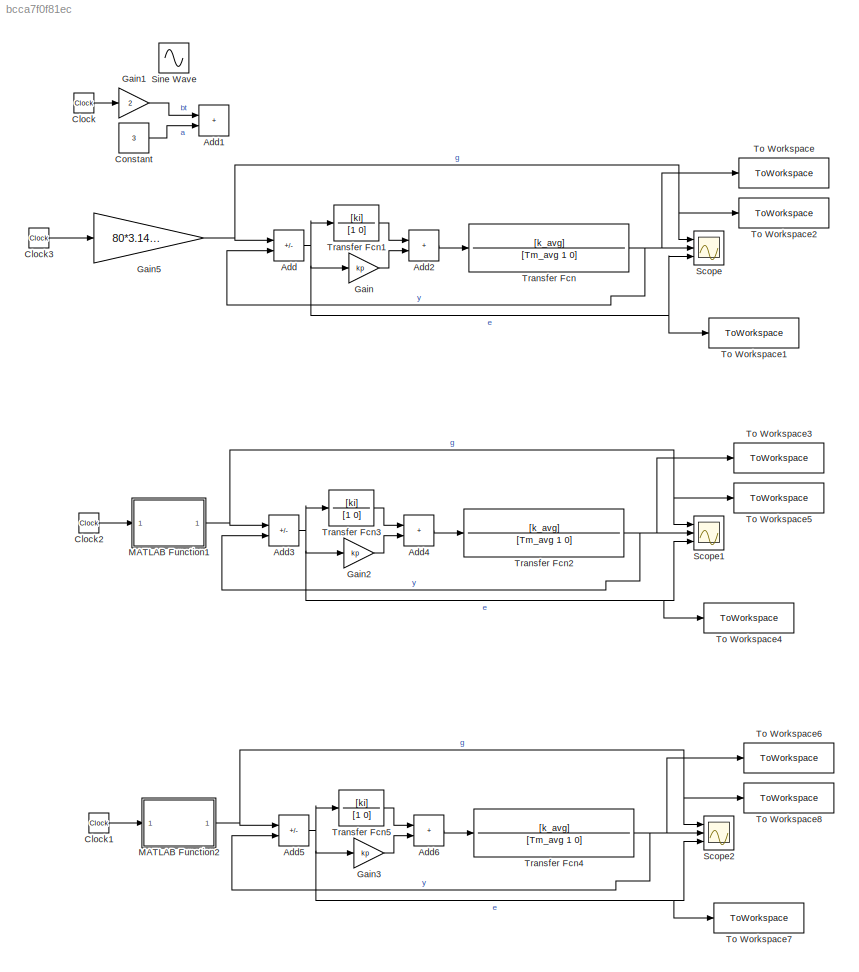
MODEL slx_bcca7f0f81ec
KIND model
CONFIG AbsTol = auto
CONFIG EnableMultiTasking = off
CONFIG FixedStep = 0.001
CONFIG MaxStep = auto
CONFIG MinStep = auto
CONFIG RelTol = 1e-3
CONFIG SampleTimeConstraint = Unconstrained
CONFIG SolverName = FixedStepAuto
CONFIG StartTime = 0.0
CONFIG StopTime = 100
BLOCK [Sum] Add
  IconShape = rectangular
  Inputs = +-
  Ports = [2, 1]
BLOCK [Sum] Add1
  IconShape = rectangular
  Ports = [2, 1]
BLOCK [Sum] Add2
  IconShape = rectangular
  Ports = [2, 1]
BLOCK [Sum] Add3
  IconShape = rectangular
  Inputs = +-
  Ports = [2, 1]
BLOCK [Sum] Add4
  IconShape = rectangular
  Ports = [2, 1]
BLOCK [Sum] Add5
  IconShape = rectangular
  Inputs = +-
  Ports = [2, 1]
BLOCK [Sum] Add6
  IconShape = rectangular
  Ports = [2, 1]
BLOCK [Clock] Clock
BLOCK [Clock] Clock1
BLOCK [Clock] Clock2
BLOCK [Clock] Clock3
BLOCK [Constant] Constant
  Value = 3
BLOCK [Gain] Gain
  Gain = kp
BLOCK [Gain] Gain1
  Gain = 2
BLOCK [Gain] Gain2
  Gain = kp
BLOCK [Gain] Gain3
  Gain = kp
BLOCK [Gain] Gain5
  Gain = 80*3.1415/180
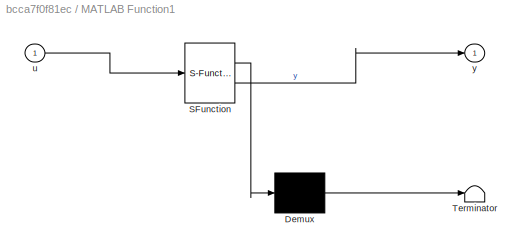
BLOCK [SubSystem] MATLAB Function1
  ErrorFcn = Stateflow.Translate.translate
  PermitHierarchicalResolution = ExplicitOnly
  Ports = [1, 1]
  RequestExecContextInheritance = off
  SFBlockType = MATLAB Function
  TreatAsAtomicUnit = on
BLOCK [Demux] MATLAB Function1/ Demux 
  Outputs = 1
  Ports = [1, 1]
BLOCK [S-Function] MATLAB Function1/ SFunction 
  EnableBusSupport = on
  FunctionName = sf_sfun
  PortCounts = [1 2]
  Ports = [1, 2]
  SFcnIsStateOwnerBlock = off
  SFunctionDeploymentMode = off
  Tag = Stateflow S-Function 1
BLOCK [Terminator] MATLAB Function1/ Terminator 
BLOCK [Inport] MATLAB Function1/u
BLOCK [Outport] MATLAB Function1/y
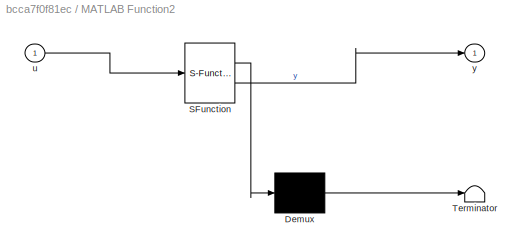
BLOCK [SubSystem] MATLAB Function2
  ErrorFcn = Stateflow.Translate.translate
  PermitHierarchicalResolution = ExplicitOnly
  Ports = [1, 1]
  RequestExecContextInheritance = off
  SFBlockType = MATLAB Function
  TreatAsAtomicUnit = on
BLOCK [Demux] MATLAB Function2/ Demux 
  Outputs = 1
  Ports = [1, 1]
BLOCK [S-Function] MATLAB Function2/ SFunction 
  EnableBusSupport = on
  FunctionName = sf_sfun
  PortCounts = [1 2]
  Ports = [1, 2]
  SFcnIsStateOwnerBlock = off
  SFunctionDeploymentMode = off
  Tag = Stateflow S-Function 2
BLOCK [Terminator] MATLAB Function2/ Terminator 
BLOCK [Inport] MATLAB Function2/u
BLOCK [Outport] MATLAB Function2/y
BLOCK [Scope] Scope
  Floating = off
  NumInputPorts = 3
  Ports = [3]
  ScopeSpecificationString = Simulink.scopes.TimeScopeBlockCfg('CurrentConfiguration', extmgr.ConfigurationSet(extmgr.Configuration('Core','General UI',true),extmgr.Configuration('Core','Source UI',true),extmgr.Configuration('Sources','WiredSimulink',true),extmgr.Configuration('Visuals','Time Domain',true,'SerializedDisplays',{struct('MinYLimReal','-19.47924','MaxYLimReal','157.32993','YLabelReal','','MinYLimMag','0.00000','M...<+1368ch>
BLOCK [Scope] Scope1
  Floating = off
  NumInputPorts = 3
  Ports = [3]
  ScopeSpecificationString = Simulink.scopes.TimeScopeBlockCfg('CurrentConfiguration', extmgr.ConfigurationSet(extmgr.Configuration('Core','General UI',true),extmgr.Configuration('Core','Source UI',true),extmgr.Configuration('Sources','WiredSimulink',true,'DataLoggingVariableName','ScopeData1'),extmgr.Configuration('Visuals','Time Domain',true,'SerializedDisplays',{struct('MinYLimReal','-872.63889','MaxYLimReal','7853.75','YL...<+1403ch>
BLOCK [Scope] Scope2
  Floating = off
  NumInputPorts = 3
  Ports = [3]
  ScopeSpecificationString = Simulink.scopes.TimeScopeBlockCfg('CurrentConfiguration', extmgr.ConfigurationSet(extmgr.Configuration('Core','General UI',true),extmgr.Configuration('Core','Source UI',true),extmgr.Configuration('Sources','WiredSimulink',true,'DataLoggingVariableName','ScopeData2'),extmgr.Configuration('Visuals','Time Domain',true,'SerializedDisplays',{struct('MinYLimReal','-21805.55556','MaxYLimReal','196250.000...<+1429ch>
BLOCK [Sin] Sine Wave
  Amplitude = 2
  Phase = 2
  Ports = [0, 1]
  SampleTime = 0
BLOCK [ToWorkspace] To Workspace
  FixptAsFi = on
  MaxDataPoints = inf
  Ports = [1]
  SampleTime = -1
  SaveFormat = Timeseries
  VariableName = y
BLOCK [ToWorkspace] To Workspace1
  FixptAsFi = on
  MaxDataPoints = inf
  Ports = [1]
  SampleTime = -1
  SaveFormat = Timeseries
  VariableName = e
BLOCK [ToWorkspace] To Workspace2
  FixptAsFi = on
  MaxDataPoints = inf
  Ports = [1]
  SampleTime = -1
  SaveFormat = Timeseries
  VariableName = g
BLOCK [ToWorkspace] To Workspace3
  FixptAsFi = on
  MaxDataPoints = inf
  Ports = [1]
  SampleTime = -1
  SaveFormat = Timeseries
  VariableName = y1
BLOCK [ToWorkspace] To Workspace4
  FixptAsFi = on
  MaxDataPoints = inf
  Ports = [1]
  SampleTime = -1
  SaveFormat = Timeseries
  VariableName = e1
BLOCK [ToWorkspace] To Workspace5
  FixptAsFi = on
  MaxDataPoints = inf
  Ports = [1]
  SampleTime = -1
  SaveFormat = Timeseries
  VariableName = g1
BLOCK [ToWorkspace] To Workspace6
  FixptAsFi = on
  MaxDataPoints = inf
  Ports = [1]
  SampleTime = -1
  SaveFormat = Timeseries
  VariableName = y2
BLOCK [ToWorkspace] To Workspace7
  FixptAsFi = on
  MaxDataPoints = inf
  Ports = [1]
  SampleTime = -1
  SaveFormat = Timeseries
  VariableName = e2
BLOCK [ToWorkspace] To Workspace8
  FixptAsFi = on
  MaxDataPoints = inf
  Ports = [1]
  SampleTime = -1
  SaveFormat = Timeseries
  VariableName = g2
BLOCK [TransferFcn] Transfer Fcn
  Denominator = [Tm_avg 1 0]
  Numerator = [k_avg]
BLOCK [TransferFcn] Transfer Fcn1
  Denominator = [1 0]
  Numerator = [ki]
BLOCK [TransferFcn] Transfer Fcn2
  Denominator = [Tm_avg 1 0]
  Numerator = [k_avg]
BLOCK [TransferFcn] Transfer Fcn3
  Denominator = [1 0]
  Numerator = [ki]
BLOCK [TransferFcn] Transfer Fcn4
  Denominator = [Tm_avg 1 0]
  Numerator = [k_avg]
BLOCK [TransferFcn] Transfer Fcn5
  Denominator = [1 0]
  Numerator = [ki]
LINE Add2:1 -> Transfer Fcn:1
NET Add3:1 -> Gain2:1, Scope1:3, To Workspace4:1, Transfer Fcn3:1
LINE Add4:1 -> Transfer Fcn2:1
NET Add5:1 -> Gain3:1, Scope2:3, To Workspace7:1, Transfer Fcn5:1
LINE Add6:1 -> Transfer Fcn4:1
NET Add:1 -> Gain:1, Scope:3, To Workspace1:1, Transfer Fcn1:1
LINE Clock1:1 -> MATLAB Function2:1
LINE Clock2:1 -> MATLAB Function1:1
LINE Clock3:1 -> Gain5:1
LINE Clock:1 -> Gain1:1
LINE Constant:1 -> Add1:2
LINE Gain1:1 -> Add1:1
LINE Gain2:1 -> Add4:2
LINE Gain3:1 -> Add6:2
NET Gain5:1 -> Add:1, Scope:1, To Workspace2:1
LINE Gain:1 -> Add2:2
NET MATLAB Function1:1 -> Add3:1, Scope1:1, To Workspace5:1
NET MATLAB Function2:1 -> Add5:1, Scope2:1, To Workspace8:1
LINE Transfer Fcn1:1 -> Add2:1
NET Transfer Fcn2:1 -> Add3:2, Scope1:2, To Workspace3:1
LINE Transfer Fcn3:1 -> Add4:1
NET Transfer Fcn4:1 -> Add5:2, Scope2:2, To Workspace6:1
LINE Transfer Fcn5:1 -> Add6:1
NET Transfer Fcn:1 -> Add:2, Scope:2, To Workspace:1
note: NET lines group one-source signal fan-out (src -> all destinations, sorted); 1:1 wires keep LINE
CHART MATLAB Function2 states=1 transitions=1
  STATE_LABEL 'eML_blk_kernel()'
  STATE_LABEL 'SCRIPT:\nfunction y = fcn(u)\n\ny = 10*3.14/180*u*u*u;\n'
CHART MATLAB Function1 states=1 transitions=1
  STATE_LABEL 'eML_blk_kernel()'
  STATE_LABEL 'SCRIPT:\nfunction y = fcn(u)\n\ny = 40*3.1415/180*u*u;\n'
CHART  states=0 transitions=0
CHART  states=0 transitions=0
